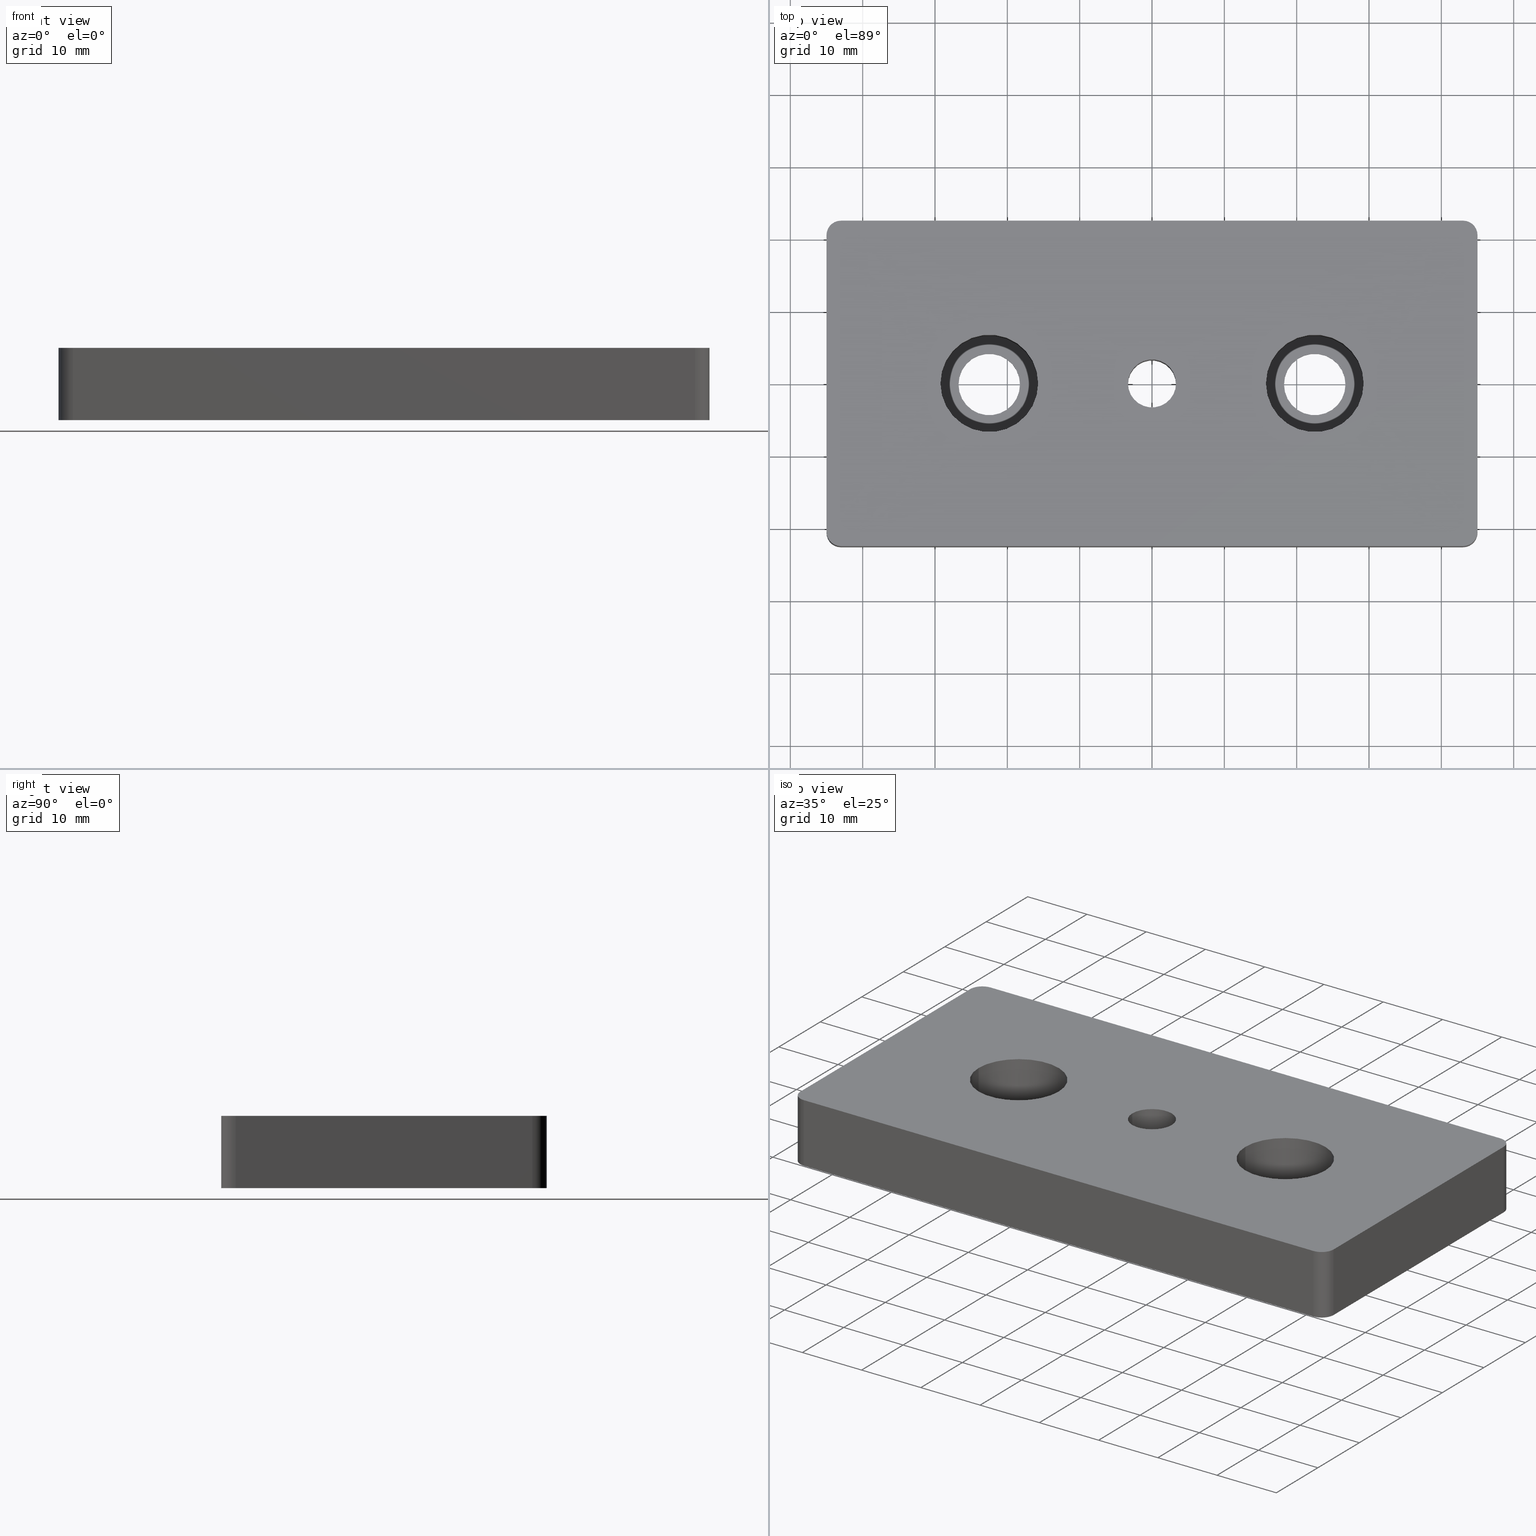
[diagram: canonical four-view strip — front | top / right | iso, engineering-drawing reading convention]
A machine part, canonical four-view strip (front | top / right | iso — engineering-drawing reading convention). The complete STEP part file that produces these views, byte-faithful:
ISO-10303-21;
HEADER;
/* Generated by software containing ST-Developer
 * from STEP Tools, Inc. (www.steptools.com) 
 */

FILE_DESCRIPTION(
/* description */ ('PIASTRA 45x90 SP.10 ALL. '),
/* implementation_level */ '2;1');

FILE_NAME(
/* name */ 
'Q:\\Catalogo\\2_Accessori Dierre\\Per Download Web e catalogo cartace
o\\CATALOGO PIEDI E SOSTEGNI\\PAGINA 47\\DPSXX0001722.stp',
/* time_stamp */ '2019-07-25T09:54:22+02:00',
/* author */ ('fzagni'),
/* organization */ (''),
/* preprocessor_version */ 'ST-DEVELOPER v17.2',
/* originating_system */ 'Autodesk Inventor 2019',
/* authorisation */ '');

FILE_SCHEMA (('AUTOMOTIVE_DESIGN { 1 0 10303 214 3 1 1 }'));
ENDSEC;

DATA;
#10=MECHANICAL_DESIGN_GEOMETRIC_PRESENTATION_REPRESENTATION('',(#14,#15),
#607);
#11=SHAPE_REPRESENTATION_RELATIONSHIP('SRR','None',#614,#12);
#12=ADVANCED_BREP_SHAPE_REPRESENTATION('',(#13),#606);
#13=MANIFOLD_SOLID_BREP('Solido1',#338);
#14=STYLED_ITEM('',(#624),#337);
#15=STYLED_ITEM('',(#623),#13);
#16=FACE_BOUND('',#51,.T.);
#17=FACE_BOUND('',#55,.T.);
#18=FACE_BOUND('',#60,.T.);
#19=FACE_BOUND('',#61,.T.);
#20=FACE_BOUND('',#62,.T.);
#21=FACE_BOUND('',#71,.T.);
#22=FACE_BOUND('',#72,.T.);
#23=FACE_BOUND('',#73,.T.);
#24=PLANE('',#362);
#25=PLANE('',#372);
#26=PLANE('',#385);
#27=PLANE('',#389);
#28=PLANE('',#394);
#29=PLANE('',#397);
#30=PLANE('',#398);
#31=PLANE('',#399);
#32=FACE_OUTER_BOUND('',#49,.T.);
#33=FACE_OUTER_BOUND('',#50,.T.);
#34=FACE_OUTER_BOUND('',#52,.T.);
#35=FACE_OUTER_BOUND('',#53,.T.);
#36=FACE_OUTER_BOUND('',#54,.T.);
#37=FACE_OUTER_BOUND('',#56,.T.);
#38=FACE_OUTER_BOUND('',#57,.T.);
#39=FACE_OUTER_BOUND('',#58,.T.);
#40=FACE_OUTER_BOUND('',#59,.T.);
#41=FACE_OUTER_BOUND('',#63,.T.);
#42=FACE_OUTER_BOUND('',#64,.T.);
#43=FACE_OUTER_BOUND('',#65,.T.);
#44=FACE_OUTER_BOUND('',#66,.T.);
#45=FACE_OUTER_BOUND('',#67,.T.);
#46=FACE_OUTER_BOUND('',#68,.T.);
#47=FACE_OUTER_BOUND('',#69,.T.);
#48=FACE_OUTER_BOUND('',#70,.T.);
#49=EDGE_LOOP('',(#220,#221,#222,#223,#224));
#50=EDGE_LOOP('',(#225,#226));
#51=EDGE_LOOP('',(#227));
#52=EDGE_LOOP('',(#228,#229,#230,#231,#232,#233));
#53=EDGE_LOOP('',(#234,#235,#236,#237,#238));
#54=EDGE_LOOP('',(#239,#240));
#55=EDGE_LOOP('',(#241));
#56=EDGE_LOOP('',(#242,#243,#244,#245,#246,#247));
#57=EDGE_LOOP('',(#248,#249,#250,#251,#252));
#58=EDGE_LOOP('',(#253,#254,#255,#256));
#59=EDGE_LOOP('',(#257,#258,#259,#260,#261,#262,#263,#264));
#60=EDGE_LOOP('',(#265));
#61=EDGE_LOOP('',(#266,#267));
#62=EDGE_LOOP('',(#268,#269));
#63=EDGE_LOOP('',(#270,#271,#272,#273));
#64=EDGE_LOOP('',(#274,#275,#276,#277));
#65=EDGE_LOOP('',(#278,#279,#280,#281));
#66=EDGE_LOOP('',(#282,#283,#284,#285));
#67=EDGE_LOOP('',(#286,#287,#288,#289));
#68=EDGE_LOOP('',(#290,#291,#292,#293));
#69=EDGE_LOOP('',(#294,#295,#296,#297));
#70=EDGE_LOOP('',(#298,#299,#300,#301,#302,#303,#304,#305));
#71=EDGE_LOOP('',(#306,#307));
#72=EDGE_LOOP('',(#308,#309));
#73=EDGE_LOOP('',(#310,#311));
#74=LINE('',#514,#95);
#75=LINE('',#528,#96);
#76=LINE('',#531,#97);
#77=LINE('',#547,#98);
#78=LINE('',#550,#99);
#79=LINE('',#559,#100);
#80=LINE('',#562,#101);
#81=LINE('',#565,#102);
#82=LINE('',#569,#103);
#83=LINE('',#573,#104);
#84=LINE('',#576,#105);
#85=LINE('',#579,#106);
#86=LINE('',#580,#107);
#87=LINE('',#584,#108);
#88=LINE('',#589,#109);
#89=LINE('',#590,#110);
#90=LINE('',#593,#111);
#91=LINE('',#594,#112);
#92=LINE('',#598,#113);
#93=LINE('',#600,#114);
#94=LINE('',#602,#115);
#95=VECTOR('',#408,3.3235);
#96=VECTOR('',#425,6.75);
#97=VECTOR('',#428,4.25);
#98=VECTOR('',#447,6.75);
#99=VECTOR('',#450,4.25);
#100=VECTOR('',#459,10.);
#101=VECTOR('',#462,10.);
#102=VECTOR('',#465,10.);
#103=VECTOR('',#468,10.);
#104=VECTOR('',#471,10.);
#105=VECTOR('',#474,10.);
#106=VECTOR('',#477,10.);
#107=VECTOR('',#478,10.);
#108=VECTOR('',#483,10.);
#109=VECTOR('',#488,10.);
#110=VECTOR('',#489,10.);
#111=VECTOR('',#492,10.);
#112=VECTOR('',#493,10.);
#113=VECTOR('',#498,10.);
#114=VECTOR('',#501,10.);
#115=VECTOR('',#504,10.);
#116=CIRCLE('',#359,3.3235);
#117=CIRCLE('',#360,3.3235);
#118=CIRCLE('',#361,3.3235);
#119=CIRCLE('',#363,6.75);
#120=CIRCLE('',#364,6.75);
#121=CIRCLE('',#365,4.25);
#122=CIRCLE('',#367,6.75);
#123=CIRCLE('',#368,6.75);
#124=CIRCLE('',#370,4.25);
#125=CIRCLE('',#371,4.25);
#126=CIRCLE('',#373,6.75);
#127=CIRCLE('',#374,6.75);
#128=CIRCLE('',#375,4.25);
#129=CIRCLE('',#377,6.75);
#130=CIRCLE('',#378,6.75);
#131=CIRCLE('',#380,4.25);
#132=CIRCLE('',#381,4.25);
#133=CIRCLE('',#383,2.);
#134=CIRCLE('',#384,2.);
#135=CIRCLE('',#386,2.);
#136=CIRCLE('',#387,2.);
#137=CIRCLE('',#388,2.);
#138=CIRCLE('',#391,2.);
#139=CIRCLE('',#393,2.);
#140=CIRCLE('',#396,2.);
#141=VERTEX_POINT('',#509);
#142=VERTEX_POINT('',#510);
#143=VERTEX_POINT('',#513);
#144=VERTEX_POINT('',#517);
#145=VERTEX_POINT('',#518);
#146=VERTEX_POINT('',#521);
#147=VERTEX_POINT('',#524);
#148=VERTEX_POINT('',#525);
#149=VERTEX_POINT('',#530);
#150=VERTEX_POINT('',#532);
#151=VERTEX_POINT('',#536);
#152=VERTEX_POINT('',#537);
#153=VERTEX_POINT('',#540);
#154=VERTEX_POINT('',#543);
#155=VERTEX_POINT('',#544);
#156=VERTEX_POINT('',#549);
#157=VERTEX_POINT('',#551);
#158=VERTEX_POINT('',#555);
#159=VERTEX_POINT('',#556);
#160=VERTEX_POINT('',#558);
#161=VERTEX_POINT('',#560);
#162=VERTEX_POINT('',#564);
#163=VERTEX_POINT('',#566);
#164=VERTEX_POINT('',#568);
#165=VERTEX_POINT('',#570);
#166=VERTEX_POINT('',#572);
#167=VERTEX_POINT('',#574);
#168=VERTEX_POINT('',#578);
#169=VERTEX_POINT('',#582);
#170=VERTEX_POINT('',#586);
#171=VERTEX_POINT('',#587);
#172=VERTEX_POINT('',#592);
#173=VERTEX_POINT('',#596);
#174=EDGE_CURVE('',#141,#142,#116,.T.);
#175=EDGE_CURVE('',#142,#141,#117,.T.);
#176=EDGE_CURVE('',#142,#143,#74,.T.);
#177=EDGE_CURVE('',#143,#143,#118,.T.);
#178=EDGE_CURVE('',#144,#145,#119,.T.);
#179=EDGE_CURVE('',#145,#144,#120,.T.);
#180=EDGE_CURVE('',#146,#146,#121,.T.);
#181=EDGE_CURVE('',#147,#148,#122,.T.);
#182=EDGE_CURVE('',#148,#147,#123,.T.);
#183=EDGE_CURVE('',#148,#145,#75,.T.);
#184=EDGE_CURVE('',#146,#149,#76,.T.);
#185=EDGE_CURVE('',#150,#149,#124,.T.);
#186=EDGE_CURVE('',#149,#150,#125,.T.);
#187=EDGE_CURVE('',#151,#152,#126,.T.);
#188=EDGE_CURVE('',#152,#151,#127,.T.);
#189=EDGE_CURVE('',#153,#153,#128,.T.);
#190=EDGE_CURVE('',#154,#155,#129,.T.);
#191=EDGE_CURVE('',#155,#154,#130,.T.);
#192=EDGE_CURVE('',#155,#152,#77,.T.);
#193=EDGE_CURVE('',#153,#156,#78,.T.);
#194=EDGE_CURVE('',#157,#156,#131,.T.);
#195=EDGE_CURVE('',#156,#157,#132,.T.);
#196=EDGE_CURVE('',#158,#159,#133,.T.);
#197=EDGE_CURVE('',#159,#160,#79,.T.);
#198=EDGE_CURVE('',#160,#161,#134,.T.);
#199=EDGE_CURVE('',#161,#158,#80,.T.);
#200=EDGE_CURVE('',#160,#162,#81,.T.);
#201=EDGE_CURVE('',#163,#162,#135,.T.);
#202=EDGE_CURVE('',#163,#164,#82,.T.);
#203=EDGE_CURVE('',#165,#164,#136,.T.);
#204=EDGE_CURVE('',#165,#166,#83,.T.);
#205=EDGE_CURVE('',#167,#166,#137,.T.);
#206=EDGE_CURVE('',#167,#161,#84,.T.);
#207=EDGE_CURVE('',#168,#159,#85,.T.);
#208=EDGE_CURVE('',#162,#168,#86,.T.);
#209=EDGE_CURVE('',#168,#169,#138,.T.);
#210=EDGE_CURVE('',#169,#163,#87,.T.);
#211=EDGE_CURVE('',#170,#171,#139,.T.);
#212=EDGE_CURVE('',#171,#167,#88,.T.);
#213=EDGE_CURVE('',#166,#170,#89,.T.);
#214=EDGE_CURVE('',#172,#165,#90,.T.);
#215=EDGE_CURVE('',#170,#172,#91,.T.);
#216=EDGE_CURVE('',#173,#172,#140,.T.);
#217=EDGE_CURVE('',#164,#173,#92,.T.);
#218=EDGE_CURVE('',#173,#169,#93,.T.);
#219=EDGE_CURVE('',#158,#171,#94,.T.);
#220=ORIENTED_EDGE('',*,*,#174,.F.);
#221=ORIENTED_EDGE('',*,*,#175,.F.);
#222=ORIENTED_EDGE('',*,*,#176,.T.);
#223=ORIENTED_EDGE('',*,*,#177,.F.);
#224=ORIENTED_EDGE('',*,*,#176,.F.);
#225=ORIENTED_EDGE('',*,*,#178,.T.);
#226=ORIENTED_EDGE('',*,*,#179,.T.);
#227=ORIENTED_EDGE('',*,*,#180,.F.);
#228=ORIENTED_EDGE('',*,*,#181,.F.);
#229=ORIENTED_EDGE('',*,*,#182,.F.);
#230=ORIENTED_EDGE('',*,*,#183,.T.);
#231=ORIENTED_EDGE('',*,*,#178,.F.);
#232=ORIENTED_EDGE('',*,*,#179,.F.);
#233=ORIENTED_EDGE('',*,*,#183,.F.);
#234=ORIENTED_EDGE('',*,*,#180,.T.);
#235=ORIENTED_EDGE('',*,*,#184,.T.);
#236=ORIENTED_EDGE('',*,*,#185,.F.);
#237=ORIENTED_EDGE('',*,*,#186,.F.);
#238=ORIENTED_EDGE('',*,*,#184,.F.);
#239=ORIENTED_EDGE('',*,*,#187,.T.);
#240=ORIENTED_EDGE('',*,*,#188,.T.);
#241=ORIENTED_EDGE('',*,*,#189,.F.);
#242=ORIENTED_EDGE('',*,*,#190,.F.);
#243=ORIENTED_EDGE('',*,*,#191,.F.);
#244=ORIENTED_EDGE('',*,*,#192,.T.);
#245=ORIENTED_EDGE('',*,*,#187,.F.);
#246=ORIENTED_EDGE('',*,*,#188,.F.);
#247=ORIENTED_EDGE('',*,*,#192,.F.);
#248=ORIENTED_EDGE('',*,*,#189,.T.);
#249=ORIENTED_EDGE('',*,*,#193,.T.);
#250=ORIENTED_EDGE('',*,*,#194,.F.);
#251=ORIENTED_EDGE('',*,*,#195,.F.);
#252=ORIENTED_EDGE('',*,*,#193,.F.);
#253=ORIENTED_EDGE('',*,*,#196,.T.);
#254=ORIENTED_EDGE('',*,*,#197,.T.);
#255=ORIENTED_EDGE('',*,*,#198,.T.);
#256=ORIENTED_EDGE('',*,*,#199,.T.);
#257=ORIENTED_EDGE('',*,*,#198,.F.);
#258=ORIENTED_EDGE('',*,*,#200,.T.);
#259=ORIENTED_EDGE('',*,*,#201,.F.);
#260=ORIENTED_EDGE('',*,*,#202,.T.);
#261=ORIENTED_EDGE('',*,*,#203,.F.);
#262=ORIENTED_EDGE('',*,*,#204,.T.);
#263=ORIENTED_EDGE('',*,*,#205,.F.);
#264=ORIENTED_EDGE('',*,*,#206,.T.);
#265=ORIENTED_EDGE('',*,*,#177,.T.);
#266=ORIENTED_EDGE('',*,*,#185,.T.);
#267=ORIENTED_EDGE('',*,*,#186,.T.);
#268=ORIENTED_EDGE('',*,*,#194,.T.);
#269=ORIENTED_EDGE('',*,*,#195,.T.);
#270=ORIENTED_EDGE('',*,*,#197,.F.);
#271=ORIENTED_EDGE('',*,*,#207,.F.);
#272=ORIENTED_EDGE('',*,*,#208,.F.);
#273=ORIENTED_EDGE('',*,*,#200,.F.);
#274=ORIENTED_EDGE('',*,*,#209,.T.);
#275=ORIENTED_EDGE('',*,*,#210,.T.);
#276=ORIENTED_EDGE('',*,*,#201,.T.);
#277=ORIENTED_EDGE('',*,*,#208,.T.);
#278=ORIENTED_EDGE('',*,*,#211,.T.);
#279=ORIENTED_EDGE('',*,*,#212,.T.);
#280=ORIENTED_EDGE('',*,*,#205,.T.);
#281=ORIENTED_EDGE('',*,*,#213,.T.);
#282=ORIENTED_EDGE('',*,*,#213,.F.);
#283=ORIENTED_EDGE('',*,*,#204,.F.);
#284=ORIENTED_EDGE('',*,*,#214,.F.);
#285=ORIENTED_EDGE('',*,*,#215,.F.);
#286=ORIENTED_EDGE('',*,*,#216,.T.);
#287=ORIENTED_EDGE('',*,*,#214,.T.);
#288=ORIENTED_EDGE('',*,*,#203,.T.);
#289=ORIENTED_EDGE('',*,*,#217,.T.);
#290=ORIENTED_EDGE('',*,*,#210,.F.);
#291=ORIENTED_EDGE('',*,*,#218,.F.);
#292=ORIENTED_EDGE('',*,*,#217,.F.);
#293=ORIENTED_EDGE('',*,*,#202,.F.);
#294=ORIENTED_EDGE('',*,*,#199,.F.);
#295=ORIENTED_EDGE('',*,*,#206,.F.);
#296=ORIENTED_EDGE('',*,*,#212,.F.);
#297=ORIENTED_EDGE('',*,*,#219,.F.);
#298=ORIENTED_EDGE('',*,*,#196,.F.);
#299=ORIENTED_EDGE('',*,*,#219,.T.);
#300=ORIENTED_EDGE('',*,*,#211,.F.);
#301=ORIENTED_EDGE('',*,*,#215,.T.);
#302=ORIENTED_EDGE('',*,*,#216,.F.);
#303=ORIENTED_EDGE('',*,*,#218,.T.);
#304=ORIENTED_EDGE('',*,*,#209,.F.);
#305=ORIENTED_EDGE('',*,*,#207,.T.);
#306=ORIENTED_EDGE('',*,*,#174,.T.);
#307=ORIENTED_EDGE('',*,*,#175,.T.);
#308=ORIENTED_EDGE('',*,*,#181,.T.);
#309=ORIENTED_EDGE('',*,*,#182,.T.);
#310=ORIENTED_EDGE('',*,*,#190,.T.);
#311=ORIENTED_EDGE('',*,*,#191,.T.);
#312=CYLINDRICAL_SURFACE('',#358,3.3235);
#313=CYLINDRICAL_SURFACE('',#366,6.75);
#314=CYLINDRICAL_SURFACE('',#369,4.25);
#315=CYLINDRICAL_SURFACE('',#376,6.75);
#316=CYLINDRICAL_SURFACE('',#379,4.25);
#317=CYLINDRICAL_SURFACE('',#382,2.);
#318=CYLINDRICAL_SURFACE('',#390,2.);
#319=CYLINDRICAL_SURFACE('',#392,2.);
#320=CYLINDRICAL_SURFACE('',#395,2.);
#321=ADVANCED_FACE('',(#32),#312,.F.);
#322=ADVANCED_FACE('',(#33,#16),#24,.T.);
#323=ADVANCED_FACE('',(#34),#313,.F.);
#324=ADVANCED_FACE('',(#35),#314,.F.);
#325=ADVANCED_FACE('',(#36,#17),#25,.T.);
#326=ADVANCED_FACE('',(#37),#315,.F.);
#327=ADVANCED_FACE('',(#38),#316,.F.);
#328=ADVANCED_FACE('',(#39),#317,.T.);
#329=ADVANCED_FACE('',(#40,#18,#19,#20),#26,.F.);
#330=ADVANCED_FACE('',(#41),#27,.T.);
#331=ADVANCED_FACE('',(#42),#318,.T.);
#332=ADVANCED_FACE('',(#43),#319,.T.);
#333=ADVANCED_FACE('',(#44),#28,.T.);
#334=ADVANCED_FACE('',(#45),#320,.T.);
#335=ADVANCED_FACE('',(#46),#29,.T.);
#336=ADVANCED_FACE('',(#47),#30,.T.);
#337=ADVANCED_FACE('',(#48,#21,#22,#23),#31,.T.);
#338=CLOSED_SHELL('',(#321,#322,#323,#324,#325,#326,#327,#328,#329,#330,
#331,#332,#333,#334,#335,#336,#337));
#339=DERIVED_UNIT_ELEMENT(#341,1.);
#340=DERIVED_UNIT_ELEMENT(#609,3.);
#341=(
MASS_UNIT()
NAMED_UNIT(*)
SI_UNIT($,.GRAM.)
);
#342=DERIVED_UNIT((#339,#340));
#343=MEASURE_REPRESENTATION_ITEM('density measure',
POSITIVE_RATIO_MEASURE(2.71),#342);
#344=PROPERTY_DEFINITION_REPRESENTATION(#349,#346);
#345=PROPERTY_DEFINITION_REPRESENTATION(#350,#347);
#346=REPRESENTATION('material name',(#348),#606);
#347=REPRESENTATION('density',(#343),#606);
#348=DESCRIPTIVE_REPRESENTATION_ITEM('Alluminio 6060 Anticorodal',
'Alluminio 6060 Anticorodal');
#349=PROPERTY_DEFINITION('material property','material name',#616);
#350=PROPERTY_DEFINITION('material property','density of part',#616);
#351=DATE_TIME_ROLE('creation_date');
#352=APPLIED_DATE_AND_TIME_ASSIGNMENT(#353,#351,(#616));
#353=DATE_AND_TIME(#354,#355);
#354=CALENDAR_DATE(2015,23,11);
#355=LOCAL_TIME(10,18,16.,#356);
#356=COORDINATED_UNIVERSAL_TIME_OFFSET(0,0,.BEHIND.);
#357=AXIS2_PLACEMENT_3D('placement',#507,#400,#401);
#358=AXIS2_PLACEMENT_3D('',#508,#402,#403);
#359=AXIS2_PLACEMENT_3D('',#511,#404,#405);
#360=AXIS2_PLACEMENT_3D('',#512,#406,#407);
#361=AXIS2_PLACEMENT_3D('',#515,#409,#410);
#362=AXIS2_PLACEMENT_3D('',#516,#411,#412);
#363=AXIS2_PLACEMENT_3D('',#519,#413,#414);
#364=AXIS2_PLACEMENT_3D('',#520,#415,#416);
#365=AXIS2_PLACEMENT_3D('',#522,#417,#418);
#366=AXIS2_PLACEMENT_3D('',#523,#419,#420);
#367=AXIS2_PLACEMENT_3D('',#526,#421,#422);
#368=AXIS2_PLACEMENT_3D('',#527,#423,#424);
#369=AXIS2_PLACEMENT_3D('',#529,#426,#427);
#370=AXIS2_PLACEMENT_3D('',#533,#429,#430);
#371=AXIS2_PLACEMENT_3D('',#534,#431,#432);
#372=AXIS2_PLACEMENT_3D('',#535,#433,#434);
#373=AXIS2_PLACEMENT_3D('',#538,#435,#436);
#374=AXIS2_PLACEMENT_3D('',#539,#437,#438);
#375=AXIS2_PLACEMENT_3D('',#541,#439,#440);
#376=AXIS2_PLACEMENT_3D('',#542,#441,#442);
#377=AXIS2_PLACEMENT_3D('',#545,#443,#444);
#378=AXIS2_PLACEMENT_3D('',#546,#445,#446);
#379=AXIS2_PLACEMENT_3D('',#548,#448,#449);
#380=AXIS2_PLACEMENT_3D('',#552,#451,#452);
#381=AXIS2_PLACEMENT_3D('',#553,#453,#454);
#382=AXIS2_PLACEMENT_3D('',#554,#455,#456);
#383=AXIS2_PLACEMENT_3D('',#557,#457,#458);
#384=AXIS2_PLACEMENT_3D('',#561,#460,#461);
#385=AXIS2_PLACEMENT_3D('',#563,#463,#464);
#386=AXIS2_PLACEMENT_3D('',#567,#466,#467);
#387=AXIS2_PLACEMENT_3D('',#571,#469,#470);
#388=AXIS2_PLACEMENT_3D('',#575,#472,#473);
#389=AXIS2_PLACEMENT_3D('',#577,#475,#476);
#390=AXIS2_PLACEMENT_3D('',#581,#479,#480);
#391=AXIS2_PLACEMENT_3D('',#583,#481,#482);
#392=AXIS2_PLACEMENT_3D('',#585,#484,#485);
#393=AXIS2_PLACEMENT_3D('',#588,#486,#487);
#394=AXIS2_PLACEMENT_3D('',#591,#490,#491);
#395=AXIS2_PLACEMENT_3D('',#595,#494,#495);
#396=AXIS2_PLACEMENT_3D('',#597,#496,#497);
#397=AXIS2_PLACEMENT_3D('',#599,#499,#500);
#398=AXIS2_PLACEMENT_3D('',#601,#502,#503);
#399=AXIS2_PLACEMENT_3D('',#603,#505,#506);
#400=DIRECTION('axis',(0.,0.,1.));
#401=DIRECTION('refdir',(1.,0.,0.));
#402=DIRECTION('center_axis',(0.,0.,1.));
#403=DIRECTION('ref_axis',(1.,0.,0.));
#404=DIRECTION('center_axis',(0.,0.,-1.));
#405=DIRECTION('ref_axis',(1.,0.,0.));
#406=DIRECTION('center_axis',(0.,0.,-1.));
#407=DIRECTION('ref_axis',(1.,0.,0.));
#408=DIRECTION('',(0.,0.,-1.));
#409=DIRECTION('center_axis',(0.,0.,1.));
#410=DIRECTION('ref_axis',(1.,0.,0.));
#411=DIRECTION('center_axis',(0.,0.,1.));
#412=DIRECTION('ref_axis',(1.,0.,0.));
#413=DIRECTION('center_axis',(0.,0.,1.));
#414=DIRECTION('ref_axis',(1.,0.,0.));
#415=DIRECTION('center_axis',(0.,0.,1.));
#416=DIRECTION('ref_axis',(1.,0.,0.));
#417=DIRECTION('center_axis',(0.,0.,1.));
#418=DIRECTION('ref_axis',(1.,0.,0.));
#419=DIRECTION('center_axis',(0.,0.,1.));
#420=DIRECTION('ref_axis',(1.,0.,0.));
#421=DIRECTION('center_axis',(0.,0.,-1.));
#422=DIRECTION('ref_axis',(1.,0.,0.));
#423=DIRECTION('center_axis',(0.,0.,-1.));
#424=DIRECTION('ref_axis',(1.,0.,0.));
#425=DIRECTION('',(0.,0.,-1.));
#426=DIRECTION('center_axis',(0.,0.,1.));
#427=DIRECTION('ref_axis',(1.,0.,0.));
#428=DIRECTION('',(0.,0.,-1.));
#429=DIRECTION('center_axis',(0.,0.,1.));
#430=DIRECTION('ref_axis',(1.,0.,0.));
#431=DIRECTION('center_axis',(0.,0.,1.));
#432=DIRECTION('ref_axis',(1.,0.,0.));
#433=DIRECTION('center_axis',(0.,0.,1.));
#434=DIRECTION('ref_axis',(1.,0.,0.));
#435=DIRECTION('center_axis',(0.,0.,1.));
#436=DIRECTION('ref_axis',(1.,0.,0.));
#437=DIRECTION('center_axis',(0.,0.,1.));
#438=DIRECTION('ref_axis',(1.,0.,0.));
#439=DIRECTION('center_axis',(0.,0.,1.));
#440=DIRECTION('ref_axis',(1.,0.,0.));
#441=DIRECTION('center_axis',(0.,0.,1.));
#442=DIRECTION('ref_axis',(1.,0.,0.));
#443=DIRECTION('center_axis',(0.,0.,-1.));
#444=DIRECTION('ref_axis',(1.,0.,0.));
#445=DIRECTION('center_axis',(0.,0.,-1.));
#446=DIRECTION('ref_axis',(1.,0.,0.));
#447=DIRECTION('',(0.,0.,-1.));
#448=DIRECTION('center_axis',(0.,0.,1.));
#449=DIRECTION('ref_axis',(1.,0.,0.));
#450=DIRECTION('',(0.,0.,-1.));
#451=DIRECTION('center_axis',(0.,0.,1.));
#452=DIRECTION('ref_axis',(1.,0.,0.));
#453=DIRECTION('center_axis',(0.,0.,1.));
#454=DIRECTION('ref_axis',(1.,0.,0.));
#455=DIRECTION('center_axis',(0.,0.,1.));
#456=DIRECTION('ref_axis',(-0.707106781186546,-0.707106781186549,0.));
#457=DIRECTION('center_axis',(0.,0.,-1.));
#458=DIRECTION('ref_axis',(-0.707106781186546,-0.707106781186549,0.));
#459=DIRECTION('',(0.,0.,-1.));
#460=DIRECTION('center_axis',(0.,0.,1.));
#461=DIRECTION('ref_axis',(-0.707106781186546,-0.707106781186549,0.));
#462=DIRECTION('',(0.,0.,1.));
#463=DIRECTION('center_axis',(0.,0.,1.));
#464=DIRECTION('ref_axis',(1.,0.,0.));
#465=DIRECTION('',(0.,1.,0.));
#466=DIRECTION('center_axis',(0.,0.,1.));
#467=DIRECTION('ref_axis',(-0.707106781186546,0.707106781186549,0.));
#468=DIRECTION('',(1.,0.,0.));
#469=DIRECTION('center_axis',(0.,0.,1.));
#470=DIRECTION('ref_axis',(0.707106781186546,0.707106781186549,0.));
#471=DIRECTION('',(0.,-1.,0.));
#472=DIRECTION('center_axis',(0.,0.,1.));
#473=DIRECTION('ref_axis',(0.707106781186546,-0.707106781186549,0.));
#474=DIRECTION('',(-1.,0.,0.));
#475=DIRECTION('center_axis',(-1.,0.,0.));
#476=DIRECTION('ref_axis',(0.,-1.,0.));
#477=DIRECTION('',(0.,-1.,0.));
#478=DIRECTION('',(0.,0.,1.));
#479=DIRECTION('center_axis',(0.,0.,1.));
#480=DIRECTION('ref_axis',(-0.707106781186546,0.707106781186549,0.));
#481=DIRECTION('center_axis',(0.,0.,-1.));
#482=DIRECTION('ref_axis',(-0.707106781186546,0.707106781186549,0.));
#483=DIRECTION('',(0.,0.,-1.));
#484=DIRECTION('center_axis',(0.,0.,1.));
#485=DIRECTION('ref_axis',(0.707106781186546,-0.707106781186549,0.));
#486=DIRECTION('center_axis',(0.,0.,-1.));
#487=DIRECTION('ref_axis',(0.707106781186546,-0.707106781186549,0.));
#488=DIRECTION('',(0.,0.,-1.));
#489=DIRECTION('',(0.,0.,1.));
#490=DIRECTION('center_axis',(1.,0.,0.));
#491=DIRECTION('ref_axis',(0.,1.,0.));
#492=DIRECTION('',(0.,0.,-1.));
#493=DIRECTION('',(0.,1.,0.));
#494=DIRECTION('center_axis',(0.,0.,1.));
#495=DIRECTION('ref_axis',(0.707106781186546,0.707106781186549,0.));
#496=DIRECTION('center_axis',(0.,0.,-1.));
#497=DIRECTION('ref_axis',(0.707106781186546,0.707106781186549,0.));
#498=DIRECTION('',(0.,0.,1.));
#499=DIRECTION('center_axis',(0.,1.,0.));
#500=DIRECTION('ref_axis',(-1.,0.,0.));
#501=DIRECTION('',(-1.,0.,0.));
#502=DIRECTION('center_axis',(0.,-1.,0.));
#503=DIRECTION('ref_axis',(1.,0.,0.));
#504=DIRECTION('',(1.,0.,0.));
#505=DIRECTION('center_axis',(0.,0.,1.));
#506=DIRECTION('ref_axis',(1.,0.,0.));
#507=CARTESIAN_POINT('',(0.,0.,0.));
#508=CARTESIAN_POINT('Origin',(0.,0.,-91.1187420807834));
#509=CARTESIAN_POINT('',(3.3235,0.,10.));
#510=CARTESIAN_POINT('',(-3.3235,-4.07011363696623E-16,10.));
#511=CARTESIAN_POINT('Origin',(0.,0.,10.));
#512=CARTESIAN_POINT('Origin',(0.,0.,10.));
#513=CARTESIAN_POINT('',(-3.3235,-4.07011363696623E-16,0.));
#514=CARTESIAN_POINT('',(-3.3235,-4.07011363696623E-16,-91.1187420807834));
#515=CARTESIAN_POINT('Origin',(0.,0.,0.));
#516=CARTESIAN_POINT('Origin',(-22.5,0.,1.5));
#517=CARTESIAN_POINT('',(-15.75,0.,1.5));
#518=CARTESIAN_POINT('',(-29.25,-8.26636589424463E-16,1.5));
#519=CARTESIAN_POINT('Origin',(-22.5,0.,1.5));
#520=CARTESIAN_POINT('Origin',(-22.5,0.,1.5));
#521=CARTESIAN_POINT('',(-26.75,-5.20474889637625E-16,1.5));
#522=CARTESIAN_POINT('Origin',(-22.5,0.,1.5));
#523=CARTESIAN_POINT('Origin',(-22.5,0.,5.75));
#524=CARTESIAN_POINT('',(-15.75,0.,10.));
#525=CARTESIAN_POINT('',(-29.25,-8.26636589424463E-16,10.));
#526=CARTESIAN_POINT('Origin',(-22.5,0.,10.));
#527=CARTESIAN_POINT('Origin',(-22.5,0.,10.));
#528=CARTESIAN_POINT('',(-29.25,-8.26636589424463E-16,5.75));
#529=CARTESIAN_POINT('Origin',(-22.5,0.,5.));
#530=CARTESIAN_POINT('',(-26.75,-5.20474889637625E-16,0.));
#531=CARTESIAN_POINT('',(-26.75,-5.20474889637625E-16,5.));
#532=CARTESIAN_POINT('',(-18.25,0.,0.));
#533=CARTESIAN_POINT('Origin',(-22.5,0.,0.));
#534=CARTESIAN_POINT('Origin',(-22.5,0.,0.));
#535=CARTESIAN_POINT('Origin',(22.5,0.,1.5));
#536=CARTESIAN_POINT('',(29.25,0.,1.5));
#537=CARTESIAN_POINT('',(15.75,-8.26636589424463E-16,1.5));
#538=CARTESIAN_POINT('Origin',(22.5,0.,1.5));
#539=CARTESIAN_POINT('Origin',(22.5,0.,1.5));
#540=CARTESIAN_POINT('',(18.25,-5.20474889637625E-16,1.5));
#541=CARTESIAN_POINT('Origin',(22.5,0.,1.5));
#542=CARTESIAN_POINT('Origin',(22.5,0.,5.75));
#543=CARTESIAN_POINT('',(29.25,0.,10.));
#544=CARTESIAN_POINT('',(15.75,-8.26636589424463E-16,10.));
#545=CARTESIAN_POINT('Origin',(22.5,0.,10.));
#546=CARTESIAN_POINT('Origin',(22.5,0.,10.));
#547=CARTESIAN_POINT('',(15.75,-8.26636589424463E-16,5.75));
#548=CARTESIAN_POINT('Origin',(22.5,0.,5.));
#549=CARTESIAN_POINT('',(18.25,-5.20474889637625E-16,0.));
#550=CARTESIAN_POINT('',(18.25,-5.20474889637625E-16,5.));
#551=CARTESIAN_POINT('',(26.75,0.,0.));
#552=CARTESIAN_POINT('Origin',(22.5,0.,0.));
#553=CARTESIAN_POINT('Origin',(22.5,0.,0.));
#554=CARTESIAN_POINT('Origin',(-43.,-20.5,0.));
#555=CARTESIAN_POINT('',(-43.,-22.5,10.));
#556=CARTESIAN_POINT('',(-45.,-20.5,10.));
#557=CARTESIAN_POINT('Origin',(-43.,-20.5,10.));
#558=CARTESIAN_POINT('',(-45.,-20.5,0.));
#559=CARTESIAN_POINT('',(-45.,-20.5,0.));
#560=CARTESIAN_POINT('',(-43.,-22.5,0.));
#561=CARTESIAN_POINT('Origin',(-43.,-20.5,0.));
#562=CARTESIAN_POINT('',(-43.,-22.5,0.));
#563=CARTESIAN_POINT('Origin',(0.,0.,0.));
#564=CARTESIAN_POINT('',(-45.,20.5,0.));
#565=CARTESIAN_POINT('',(-45.,-22.5,0.));
#566=CARTESIAN_POINT('',(-43.,22.5,0.));
#567=CARTESIAN_POINT('Origin',(-43.,20.5,0.));
#568=CARTESIAN_POINT('',(43.,22.5,0.));
#569=CARTESIAN_POINT('',(-45.,22.5,0.));
#570=CARTESIAN_POINT('',(45.,20.5,0.));
#571=CARTESIAN_POINT('Origin',(43.,20.5,0.));
#572=CARTESIAN_POINT('',(45.,-20.5,0.));
#573=CARTESIAN_POINT('',(45.,22.5,0.));
#574=CARTESIAN_POINT('',(43.,-22.5,0.));
#575=CARTESIAN_POINT('Origin',(43.,-20.5,0.));
#576=CARTESIAN_POINT('',(45.,-22.5,0.));
#577=CARTESIAN_POINT('Origin',(-45.,22.5,0.));
#578=CARTESIAN_POINT('',(-45.,20.5,10.));
#579=CARTESIAN_POINT('',(-45.,-22.5,10.));
#580=CARTESIAN_POINT('',(-45.,20.5,0.));
#581=CARTESIAN_POINT('Origin',(-43.,20.5,0.));
#582=CARTESIAN_POINT('',(-43.,22.5,10.));
#583=CARTESIAN_POINT('Origin',(-43.,20.5,10.));
#584=CARTESIAN_POINT('',(-43.,22.5,0.));
#585=CARTESIAN_POINT('Origin',(43.,-20.5,0.));
#586=CARTESIAN_POINT('',(45.,-20.5,10.));
#587=CARTESIAN_POINT('',(43.,-22.5,10.));
#588=CARTESIAN_POINT('Origin',(43.,-20.5,10.));
#589=CARTESIAN_POINT('',(43.,-22.5,0.));
#590=CARTESIAN_POINT('',(45.,-20.5,0.));
#591=CARTESIAN_POINT('Origin',(45.,-22.5,0.));
#592=CARTESIAN_POINT('',(45.,20.5,10.));
#593=CARTESIAN_POINT('',(45.,20.5,0.));
#594=CARTESIAN_POINT('',(45.,22.5,10.));
#595=CARTESIAN_POINT('Origin',(43.,20.5,0.));
#596=CARTESIAN_POINT('',(43.,22.5,10.));
#597=CARTESIAN_POINT('Origin',(43.,20.5,10.));
#598=CARTESIAN_POINT('',(43.,22.5,0.));
#599=CARTESIAN_POINT('Origin',(45.,22.5,0.));
#600=CARTESIAN_POINT('',(-45.,22.5,10.));
#601=CARTESIAN_POINT('Origin',(-45.,-22.5,0.));
#602=CARTESIAN_POINT('',(45.,-22.5,10.));
#603=CARTESIAN_POINT('Origin',(0.,0.,10.));
#604=UNCERTAINTY_MEASURE_WITH_UNIT(LENGTH_MEASURE(0.01),#608,
'DISTANCE_ACCURACY_VALUE',
'Maximum model space distance between geometric entities at asserted c
onnectivities');
#605=UNCERTAINTY_MEASURE_WITH_UNIT(LENGTH_MEASURE(0.01),#608,
'DISTANCE_ACCURACY_VALUE',
'Maximum model space distance between geometric entities at asserted c
onnectivities');
#606=(
GEOMETRIC_REPRESENTATION_CONTEXT(3)
GLOBAL_UNCERTAINTY_ASSIGNED_CONTEXT((#604))
GLOBAL_UNIT_ASSIGNED_CONTEXT((#608,#610,#611))
REPRESENTATION_CONTEXT('','3D')
);
#607=(
GEOMETRIC_REPRESENTATION_CONTEXT(3)
GLOBAL_UNCERTAINTY_ASSIGNED_CONTEXT((#605))
GLOBAL_UNIT_ASSIGNED_CONTEXT((#608,#610,#611))
REPRESENTATION_CONTEXT('','3D')
);
#608=(
LENGTH_UNIT()
NAMED_UNIT(*)
SI_UNIT(.MILLI.,.METRE.)
);
#609=(
LENGTH_UNIT()
NAMED_UNIT(*)
SI_UNIT(.CENTI.,.METRE.)
);
#610=(
NAMED_UNIT(*)
PLANE_ANGLE_UNIT()
SI_UNIT($,.RADIAN.)
);
#611=(
NAMED_UNIT(*)
SI_UNIT($,.STERADIAN.)
SOLID_ANGLE_UNIT()
);
#612=SHAPE_DEFINITION_REPRESENTATION(#613,#614);
#613=PRODUCT_DEFINITION_SHAPE('',$,#616);
#614=SHAPE_REPRESENTATION('',(#357),#606);
#615=PRODUCT_DEFINITION_CONTEXT('part definition',#620,'design');
#616=PRODUCT_DEFINITION('DPSXX0001722','DPSXX0001722',#617,#615);
#617=PRODUCT_DEFINITION_FORMATION('A',$,#622);
#618=PRODUCT_RELATED_PRODUCT_CATEGORY('DPSXX0001722','DPSXX0001722',(#622));
#619=APPLICATION_PROTOCOL_DEFINITION('international standard',
'automotive_design',2009,#620);
#620=APPLICATION_CONTEXT(
'Core Data for Automotive Mechanical Design Process');
#621=PRODUCT_CONTEXT('part definition',#620,'mechanical');
#622=PRODUCT('DPSXX0001722','DPSXX0001722','PIASTRA 45x90 SP.10 ALL. ',
(#621));
#623=PRESENTATION_STYLE_ASSIGNMENT((#625));
#624=PRESENTATION_STYLE_ASSIGNMENT((#626));
#625=SURFACE_STYLE_USAGE(.BOTH.,#631);
#626=SURFACE_STYLE_USAGE(.BOTH.,#632);
#627=SURFACE_STYLE_RENDERING_WITH_PROPERTIES($,#639,(#629));
#628=SURFACE_STYLE_RENDERING_WITH_PROPERTIES($,#640,(#630));
#629=SURFACE_STYLE_TRANSPARENT(1.);
#630=SURFACE_STYLE_TRANSPARENT(1.);
#631=SURFACE_SIDE_STYLE('',(#633,#627));
#632=SURFACE_SIDE_STYLE('',(#634,#628));
#633=SURFACE_STYLE_FILL_AREA(#635);
#634=SURFACE_STYLE_FILL_AREA(#636);
#635=FILL_AREA_STYLE('',(#637));
#636=FILL_AREA_STYLE('',(#638));
#637=FILL_AREA_STYLE_COLOUR('',#639);
#638=FILL_AREA_STYLE_COLOUR('',#640);
#639=COLOUR_RGB('',0.811764705882353,0.8,0.823529411764706);
#640=COLOUR_RGB('',0.725490196078431,0.725490196078431,0.725490196078431);
ENDSEC;
END-ISO-10303-21;
